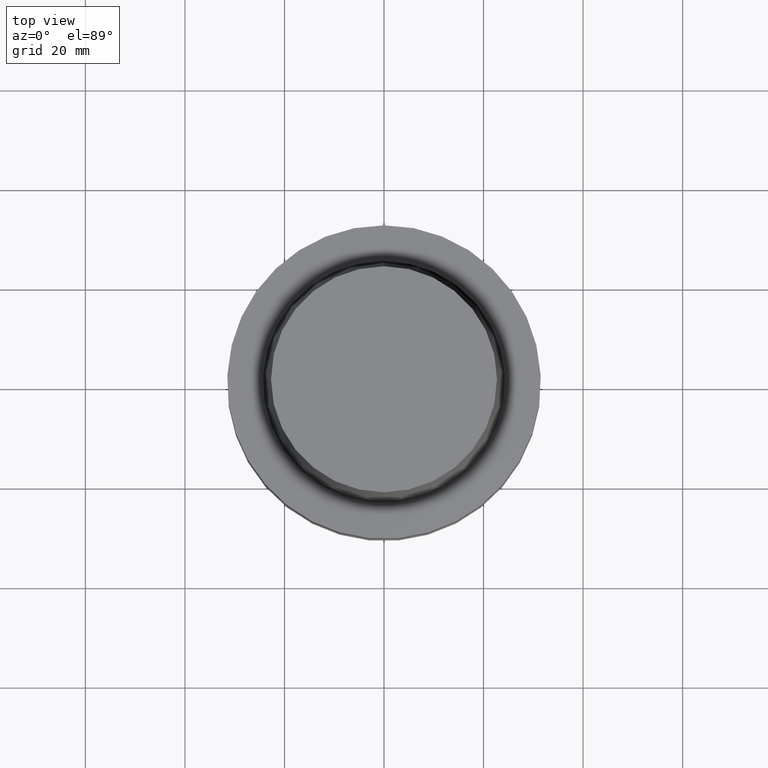
[diagram: clean part render]
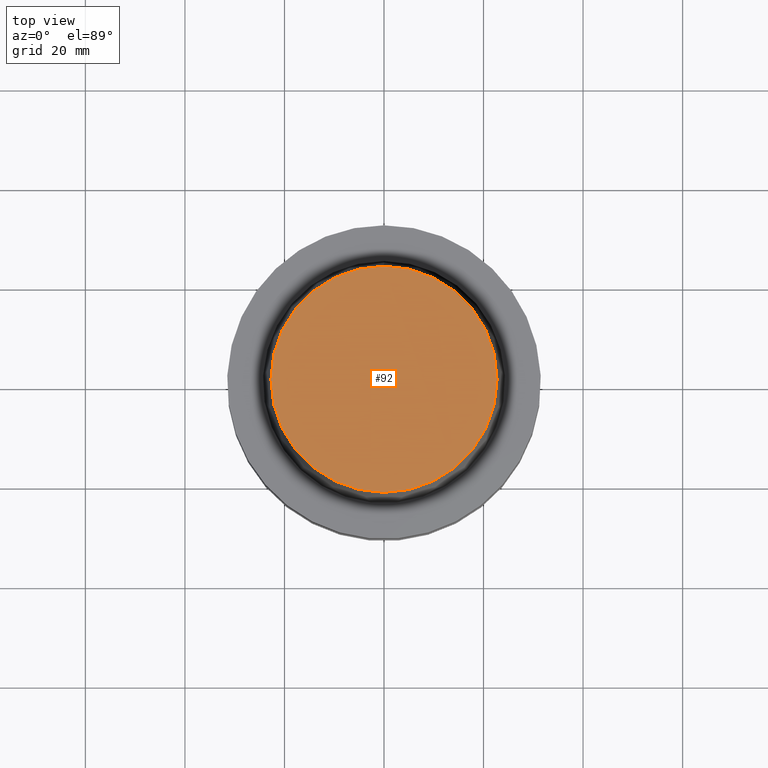
[diagram: same view with one face highlighted and labeled with its STEP entity id]
A machine part, top view. The second image highlights one B-rep face of the part: STEP entity #92.
In plain terms, the highlighted planar face has unit normal (-0, -0, 1).
Its self-contained STEP definition (entity closure, byte-faithful):
#92=ADVANCED_FACE('',(#145),#146,.T.);
#145=FACE_OUTER_BOUND('',#200,.T.);
#146=PLANE('',#201);
#200=EDGE_LOOP('',(#289));
#201=AXIS2_PLACEMENT_3D('',#290,#291,#292);
#289=ORIENTED_EDGE('',*,*,#315,.F.);
#290=CARTESIAN_POINT('',(-1.95943487863577E-015,11.3574999984407,32.0));
#291=DIRECTION('',(-6.12323399573677E-017,-1.22464679914735E-016,1.0));
#292=DIRECTION('',(1.23259516440783E-032,-1.0,-1.22464679914735E-016));
#315=EDGE_CURVE('',#350,#350,#351,.T.);
#350=VERTEX_POINT('',#386);
#351=CIRCLE('',#387,22.7149999968815);
#386=CARTESIAN_POINT('',(-1.95943487863577E-015,22.7149999968815,32.0));
#387=AXIS2_PLACEMENT_3D('',#439,#440,#441);
#439=CARTESIAN_POINT('',(-1.95943487863577E-015,-3.91886975727153E-015,32.0));
#440=DIRECTION('',(6.12323399573677E-017,1.22464679914735E-016,-1.0));
#441=DIRECTION('',(-1.23259516440783E-032,1.0,1.22464679914735E-016));